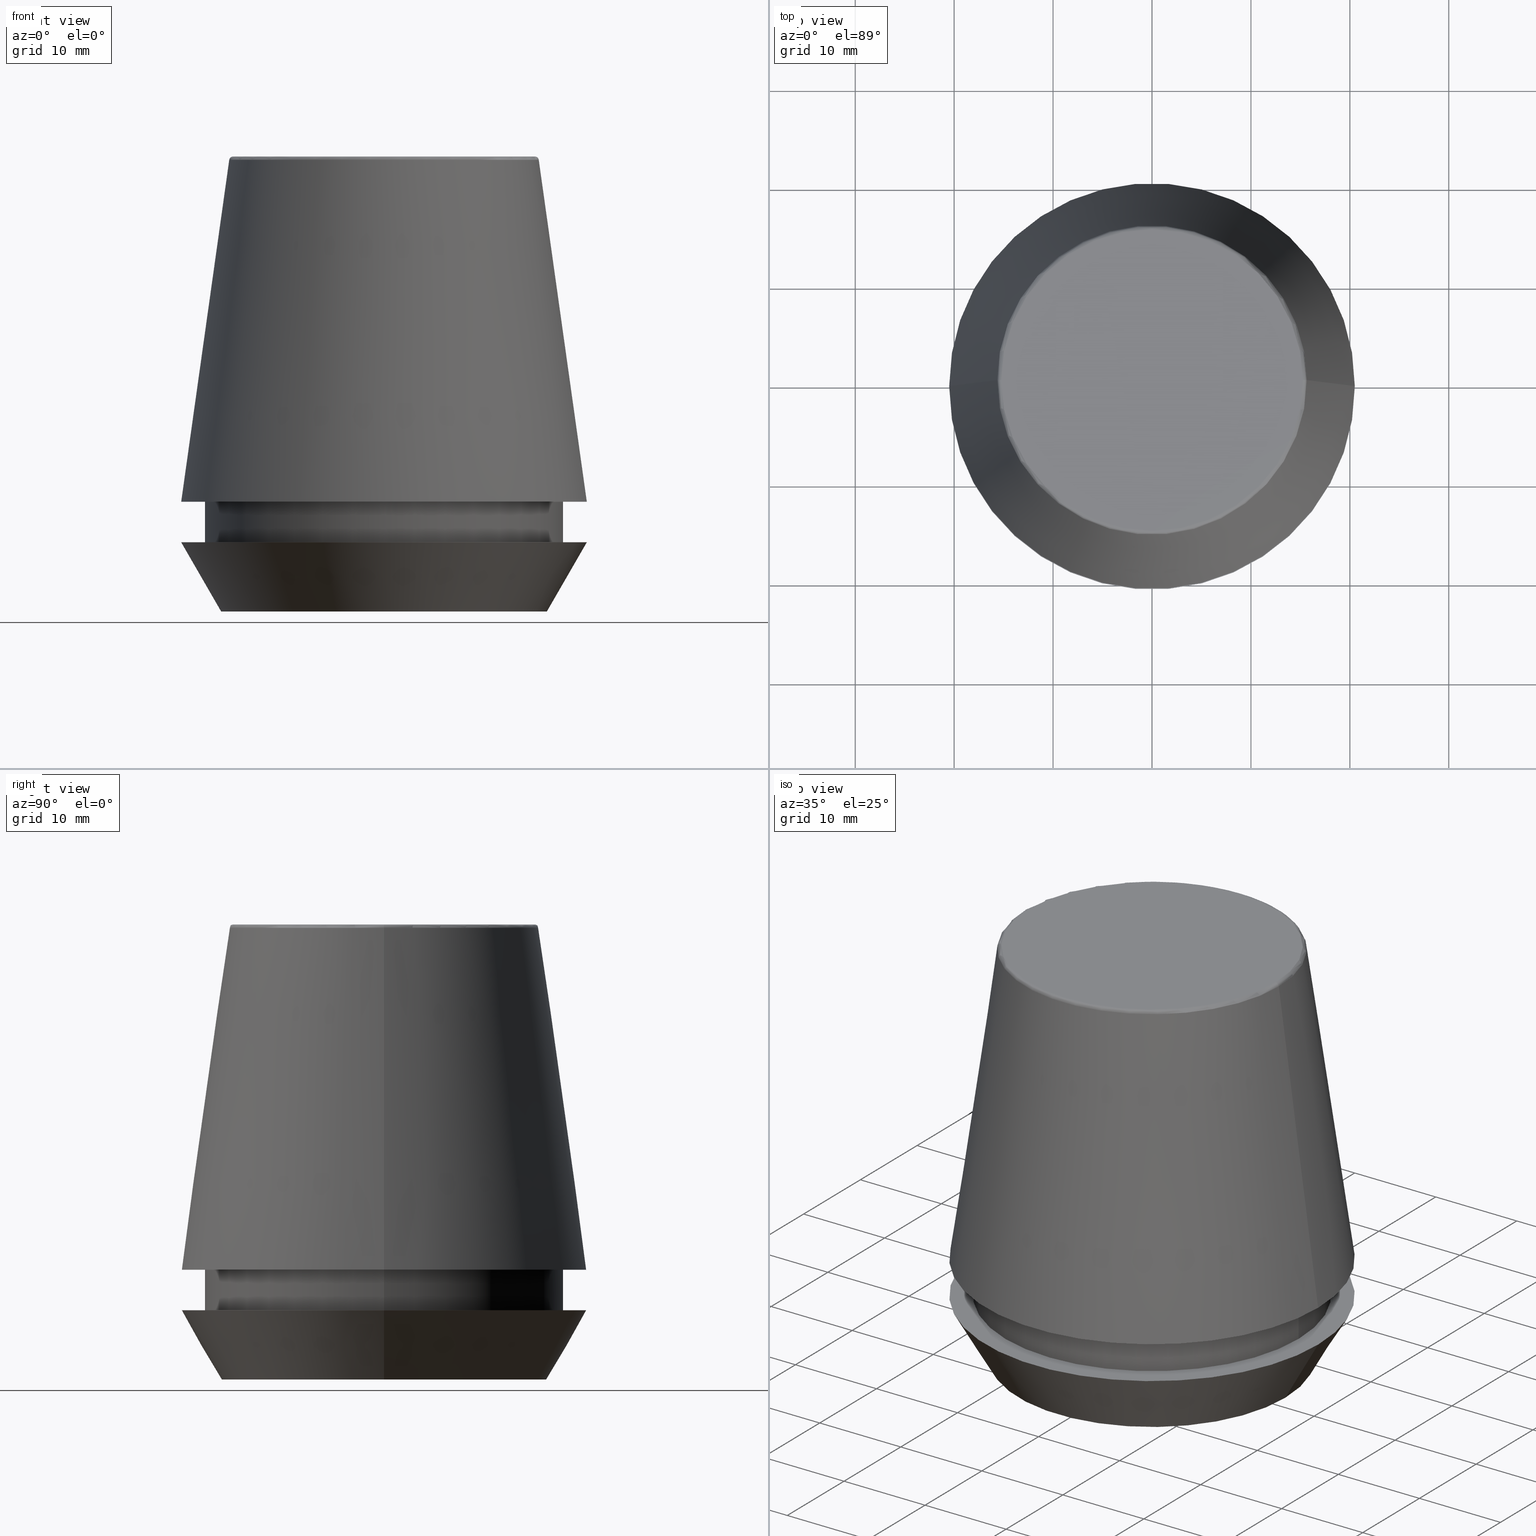
[diagram: canonical four-view strip — front | top / right | iso, engineering-drawing reading convention]
A machine part, canonical four-view strip (front | top / right | iso — engineering-drawing reading convention). The complete STEP part file that produces these views, byte-faithful:
ISO-10303-21;
HEADER;
FILE_DESCRIPTION (( 'STEP AP203' ),
    '1' );
FILE_NAME ('TAP COLLET ER 40G 16.0 X 12.0.STEP',
    '2019-04-10T04:10:29',
    ( '' ),
    ( '' ),
    'SwSTEP 2.0',
    'SolidWorks 2014',
    '' );
FILE_SCHEMA (( 'CONFIG_CONTROL_DESIGN' ));
ENDSEC;

DATA;
#1 = DIRECTION ( 'NONE',  ( 1.000000000000000000, 0.0000000000000000000, 0.0000000000000000000 ) ) ;
#2 = CARTESIAN_POINT ( 'NONE',  ( 18.10000000000000500, 0.0000000000000000000, 46.00000000000000000 ) ) ;
#3 = AXIS2_PLACEMENT_3D ( 'NONE', #52, #127, #259 ) ;
#4 = DIRECTION ( 'NONE',  ( -0.0000000000000000000, -0.0000000000000000000, 1.000000000000000000 ) ) ;
#5 = PERSON_AND_ORGANIZATION ( #62, #172 ) ;
#6 = UNCERTAINTY_MEASURE_WITH_UNIT (LENGTH_MEASURE( 1.000000000000000100E-005 ), #272, 'distance_accuracy_value', 'NONE');
#7 = DIRECTION ( 'NONE',  ( 1.000000000000000000, 0.0000000000000000000, 0.0000000000000000000 ) ) ;
#8 = PERSON_AND_ORGANIZATION_ROLE ( 'design_supplier' ) ;
#9 = EDGE_LOOP ( 'NONE', ( #336, #349, #170, #177 ) ) ;
#10 = ORIENTED_EDGE ( 'NONE', *, *, #217, .T. ) ;
#11 = DIRECTION ( 'NONE',  ( 1.000000000000000000, 0.0000000000000000000, 0.0000000000000000000 ) ) ;
#12 = AXIS2_PLACEMENT_3D ( 'NONE', #106, #326, #158 ) ;
#13 = APPROVAL_DATE_TIME ( #178, #143 ) ;
#14 = DIRECTION ( 'NONE',  ( -0.0000000000000000000, -0.0000000000000000000, 1.000000000000000000 ) ) ;
#15 = VERTEX_POINT ( 'NONE', #368 ) ;
#16 = ORIENTED_EDGE ( 'NONE', *, *, #297, .T. ) ;
#17 = AXIS2_PLACEMENT_3D ( 'NONE', #218, #278, #174 ) ;
#18 = CARTESIAN_POINT ( 'NONE',  ( 18.10000000000000500, 0.0000000000000000000, 11.09999999999999800 ) ) ;
#19 = ORIENTED_EDGE ( 'NONE', *, *, #233, .F. ) ;
#20 = ORIENTED_EDGE ( 'NONE', *, *, #313, .F. ) ;
#21 = CARTESIAN_POINT ( 'NONE',  ( 0.0000000000000000000, 20.50000000000000000, 7.000000000000002700 ) ) ;
#22 = DIRECTION ( 'NONE',  ( 1.000000000000000000, 0.0000000000000000000, 0.0000000000000000000 ) ) ;
#23 = PLANE ( 'NONE',  #251 ) ;
#24 = EDGE_CURVE ( 'NONE', #51, #120, #93, .T. ) ;
#25 = AXIS2_PLACEMENT_3D ( 'NONE', #352, #234, #27 ) ;
#26 = DIRECTION ( 'NONE',  ( 0.0000000000000000000, -1.000000000000000000, 0.0000000000000000000 ) ) ;
#27 = DIRECTION ( 'NONE',  ( 1.000000000000000000, 0.0000000000000000000, 0.0000000000000000000 ) ) ;
#28 = EDGE_LOOP ( 'NONE', ( #56, #91, #226, #16 ) ) ;
#29 = EDGE_CURVE ( 'NONE', #207, #149, #353, .T. ) ;
#30 = PRODUCT_DEFINITION_FORMATION_WITH_SPECIFIED_SOURCE ( 'ANY', '', #113, .NOT_KNOWN. ) ;
#31 = VECTOR ( 'NONE', #138, 1000.000000000000000 ) ;
#32 = PERSON_AND_ORGANIZATION ( #62, #172 ) ;
#33 = DIRECTION ( 'NONE',  ( -0.0000000000000000000, -0.0000000000000000000, 1.000000000000000000 ) ) ;
#34 = CARTESIAN_POINT ( 'NONE',  ( 0.0000000000000000000, 0.0000000000000000000, 0.0000000000000000000 ) ) ;
#35 = MECHANICAL_CONTEXT ( 'NONE', #144, 'mechanical' ) ;
#36 =( GEOMETRIC_REPRESENTATION_CONTEXT ( 3 ) GLOBAL_UNCERTAINTY_ASSIGNED_CONTEXT ( ( #6 ) ) GLOBAL_UNIT_ASSIGNED_CONTEXT ( ( #272, #303, #341 ) ) REPRESENTATION_CONTEXT ( 'NONE', 'WORKASPACE' ) );
#37 = ORIENTED_EDGE ( 'NONE', *, *, #255, .T. ) ;
#38 = SECURITY_CLASSIFICATION_LEVEL ( 'unclassified' ) ;
#39 = EDGE_CURVE ( 'NONE', #286, #323, #205, .T. ) ;
#40 = DIRECTION ( 'NONE',  ( -0.0000000000000000000, -0.0000000000000000000, 1.000000000000000000 ) ) ;
#41 = ADVANCED_FACE ( 'NONE', ( #121 ), #320, .T. ) ;
#42 = DATE_AND_TIME ( #94, #371 ) ;
#43 = COORDINATED_UNIVERSAL_TIME_OFFSET ( 5, 30, .AHEAD. ) ;
#44 = ADVANCED_FACE ( 'NONE', ( #48 ), #308, .T. ) ;
#45 = EDGE_CURVE ( 'NONE', #307, #120, #317, .T. ) ;
#46 = DIRECTION ( 'NONE',  ( 1.000000000000000000, 0.0000000000000000000, 0.0000000000000000000 ) ) ;
#47 = AXIS2_PLACEMENT_3D ( 'NONE', #364, #26, #88 ) ;
#48 = FACE_OUTER_BOUND ( 'NONE', #134, .T. ) ;
#49 = MANIFOLD_SOLID_BREP ( 'Revolve1', #117 ) ;
#50 = CALENDAR_DATE ( 2019, 10, 4 ) ;
#51 = VERTEX_POINT ( 'NONE', #90 ) ;
#52 = CARTESIAN_POINT ( 'NONE',  ( 0.0000000000000000000, 0.0000000000000000000, 11.09999999999999800 ) ) ;
#53 = DIRECTION ( 'NONE',  ( -1.000000000000000000, 0.0000000000000000000, -0.0000000000000000000 ) ) ;
#54 = CARTESIAN_POINT ( 'NONE',  ( 0.0000000000000000000, 0.0000000000000000000, 11.09999999999999800 ) ) ;
#55 = CC_DESIGN_PERSON_AND_ORGANIZATION_ASSIGNMENT ( #64, #8, ( #30 ) ) ;
#56 = ORIENTED_EDGE ( 'NONE', *, *, #224, .F. ) ;
#57 = CARTESIAN_POINT ( 'NONE',  ( 0.0000000000000000000, 0.0000000000000000000, 45.60000000000000100 ) ) ;
#58 = EDGE_CURVE ( 'NONE', #15, #51, #130, .T. ) ;
#59 = CARTESIAN_POINT ( 'NONE',  ( 0.0000000000000000000, 0.0000000000000000000, 45.65566924038402900 ) ) ;
#60 = EDGE_CURVE ( 'NONE', #307, #15, #191, .T. ) ;
#61 = DIRECTION ( 'NONE',  ( -0.0000000000000000000, -0.0000000000000000000, 1.000000000000000000 ) ) ;
#62 = PERSON ( 'UNSPECIFIED', 'UNSPECIFIED', 'UNSPECIFIED', ('UNSPECIFIED'), ('UNSPECIFIED'), ('UNSPECIFIED') ) ;
#63 = EDGE_CURVE ( 'NONE', #15, #307, #310, .T. ) ;
#64 = PERSON_AND_ORGANIZATION ( #62, #172 ) ;
#65 = DIRECTION ( 'NONE',  ( 1.000000000000000000, 0.0000000000000000000, 0.0000000000000000000 ) ) ;
#66 = DIRECTION ( 'NONE',  ( -0.0000000000000000000, -0.0000000000000000000, 1.000000000000000000 ) ) ;
#67 = AXIS2_PLACEMENT_3D ( 'NONE', #80, #102, #282 ) ;
#68 = DIRECTION ( 'NONE',  ( 1.000000000000000000, 0.0000000000000000000, 0.0000000000000000000 ) ) ;
#69 = ORIENTED_EDGE ( 'NONE', *, *, #217, .F. ) ;
#70 = APPLICATION_CONTEXT ( 'configuration controlled 3d designs of mechanical parts and assemblies' ) ;
#71 = ORIENTED_EDGE ( 'NONE', *, *, #132, .F. ) ;
#72 = APPROVAL_STATUS ( 'not_yet_approved' ) ;
#73 = EDGE_CURVE ( 'NONE', #89, #318, #329, .T. ) ;
#74 = ORIENTED_EDGE ( 'NONE', *, *, #29, .F. ) ;
#75 = AXIS2_PLACEMENT_3D ( 'NONE', #361, #294, #237 ) ;
#76 = ADVANCED_FACE ( 'NONE', ( #322 ), #196, .F. ) ;
#77 = ADVANCED_FACE ( 'NONE', ( #315 ), #300, .T. ) ;
#78 = ADVANCED_FACE ( 'NONE', ( #296 ), #316, .T. ) ;
#79 = COORDINATED_UNIVERSAL_TIME_OFFSET ( 5, 30, .AHEAD. ) ;
#80 = CARTESIAN_POINT ( 'NONE',  ( 0.0000000000000000000, 20.50032537154048700, 11.09999999999999800 ) ) ;
#81 = ORIENTED_EDGE ( 'NONE', *, *, #380, .T. ) ;
#82 = CARTESIAN_POINT ( 'NONE',  ( 0.0000000000000000000, 15.24773554530077600, 46.00000000000000000 ) ) ;
#83 = DIRECTION ( 'NONE',  ( -1.000000000000000000, 0.0000000000000000000, 0.0000000000000000000 ) ) ;
#84 = DIRECTION ( 'NONE',  ( 1.000000000000000000, 0.0000000000000000000, 0.0000000000000000000 ) ) ;
#85 = EDGE_LOOP ( 'NONE', ( #179, #81, #225, #220 ) ) ;
#86 = EDGE_LOOP ( 'NONE', ( #69, #372, #145, #362 ) ) ;
#87 = AXIS2_PLACEMENT_3D ( 'NONE', #82, #355, #53 ) ;
#88 = DIRECTION ( 'NONE',  ( 0.0000000000000000000, 0.0000000000000000000, -1.000000000000000000 ) ) ;
#89 = VERTEX_POINT ( 'NONE', #227 ) ;
#90 = CARTESIAN_POINT ( 'NONE',  ( -20.50000000000000000, 2.510525938252074100E-015, 7.000000000000006200 ) ) ;
#91 = ORIENTED_EDGE ( 'NONE', *, *, #380, .F. ) ;
#92 = LOCAL_TIME ( 9, 40, 29.00000000000000000, #79 ) ;
#93 = CIRCLE ( 'NONE', #325, 20.50000000000000000 ) ;
#94 = CALENDAR_DATE ( 2019, 10, 4 ) ;
#95 = APPROVAL_STATUS ( 'not_yet_approved' ) ;
#96 = ADVANCED_FACE ( 'NONE', ( #298 ), #285, .T. ) ;
#97 = PERSON_AND_ORGANIZATION ( #62, #172 ) ;
#98 = ADVANCED_FACE ( 'NONE', ( #311 ), #304, .T. ) ;
#99 = CARTESIAN_POINT ( 'NONE',  ( 15.24773554530077600, 0.0000000000000000000, 46.00000000000000000 ) ) ;
#100 = CARTESIAN_POINT ( 'NONE',  ( 20.50032537154048700, 2.510565784773633700E-015, 11.09999999999999800 ) ) ;
#101 = ORIENTED_EDGE ( 'NONE', *, *, #58, .T. ) ;
#102 = DIRECTION ( 'NONE',  ( 0.0000000000000000000, -0.0000000000000000000, 1.000000000000000000 ) ) ;
#103 = ADVANCED_FACE ( 'NONE', ( #302 ), #279, .T. ) ;
#104 = CARTESIAN_POINT ( 'NONE',  ( 20.50032537154048700, 2.510565784773633700E-015, 11.09999999999999800 ) ) ;
#105 = DIRECTION ( 'NONE',  ( 0.0000000000000000000, 0.0000000000000000000, -1.000000000000000000 ) ) ;
#106 = CARTESIAN_POINT ( 'NONE',  ( 0.0000000000000000000, 0.0000000000000000000, 11.09999999999999800 ) ) ;
#107 = AXIS2_PLACEMENT_3D ( 'NONE', #122, #348, #321 ) ;
#108 = DIRECTION ( 'NONE',  ( -0.0000000000000000000, -0.0000000000000000000, 1.000000000000000000 ) ) ;
#109 = DIRECTION ( 'NONE',  ( 1.000000000000000000, 0.0000000000000000000, 0.0000000000000000000 ) ) ;
#110 = DIRECTION ( 'NONE',  ( 1.000000000000000000, 0.0000000000000000000, 0.0000000000000000000 ) ) ;
#111 = AXIS2_PLACEMENT_3D ( 'NONE', #184, #222, #373 ) ;
#112 = CARTESIAN_POINT ( 'NONE',  ( -16.45854811567268100, 2.015590826847124800E-015, 0.0000000000000000000 ) ) ;
#113 = PRODUCT ( 'TAP COLLET ER 40G 16.0 X 12.0', 'TAP COLLET ER 40G 16.0 X 12.0', '', ( #35 ) ) ;
#114 = CARTESIAN_POINT ( 'NONE',  ( 0.0000000000000000000, 0.0000000000000000000, 6.999999999999999100 ) ) ;
#115 = AXIS2_PLACEMENT_3D ( 'NONE', #161, #356, #84 ) ;
#116 = ADVANCED_FACE ( 'NONE', ( #305 ), #378, .F. ) ;
#117 = CLOSED_SHELL ( 'NONE', ( #78, #103, #77, #44, #76, #41, #155, #96, #119, #128, #98, #116 ) ) ;
#118 = APPROVAL_ROLE ( '' ) ;
#119 = ADVANCED_FACE ( 'NONE', ( #292, #290 ), #261, .F. ) ;
#120 = VERTEX_POINT ( 'NONE', #284 ) ;
#121 = FACE_OUTER_BOUND ( 'NONE', #209, .T. ) ;
#122 = CARTESIAN_POINT ( 'NONE',  ( 0.0000000000000000000, 0.0000000000000000000, 11.09999999999999800 ) ) ;
#123 = EDGE_LOOP ( 'NONE', ( #74, #20 ) ) ;
#124 = APPROVAL_DATE_TIME ( #192, #332 ) ;
#125 = CC_DESIGN_PERSON_AND_ORGANIZATION_ASSIGNMENT ( #5, #365, ( #30 ) ) ;
#126 = CARTESIAN_POINT ( 'NONE',  ( -18.10000000000000100, 2.216610706456709600E-015, 6.999999999999999100 ) ) ;
#127 = DIRECTION ( 'NONE',  ( -0.0000000000000000000, -0.0000000000000000000, 1.000000000000000000 ) ) ;
#128 = ADVANCED_FACE ( 'NONE', ( #244 ), #238, .T. ) ;
#129 = CALENDAR_DATE ( 2019, 10, 4 ) ;
#130 = LINE ( 'NONE', #112, #309 ) ;
#131 = DIRECTION ( 'NONE',  ( 1.000000000000000000, 0.0000000000000000000, 0.0000000000000000000 ) ) ;
#132 = EDGE_CURVE ( 'NONE', #89, #323, #239, .T. ) ;
#133 = DIRECTION ( 'NONE',  ( -0.0000000000000000000, -0.0000000000000000000, 1.000000000000000000 ) ) ;
#134 = EDGE_LOOP ( 'NONE', ( #168, #101, #381, #203 ) ) ;
#135 = CC_DESIGN_DATE_AND_TIME_ASSIGNMENT ( #42, #342, ( #256 ) ) ;
#136 = ORIENTED_EDGE ( 'NONE', *, *, #297, .F. ) ;
#137 = LOCAL_TIME ( 9, 40, 29.00000000000000000, #166 ) ;
#138 = DIRECTION ( 'NONE',  ( 0.4999999999999941700, 0.0000000000000000000, 0.8660254037844420400 ) ) ;
#139 = EDGE_CURVE ( 'NONE', #350, #151, #291, .T. ) ;
#140 = CARTESIAN_POINT ( 'NONE',  ( 0.0000000000000000000, 0.0000000000000000000, 0.0000000000000000000 ) ) ;
#141 = EDGE_LOOP ( 'NONE', ( #37, #236 ) ) ;
#142 = CIRCLE ( 'NONE', #211, 15.64384277279740400 ) ;
#143 = APPROVAL ( #95, 'UNSPECIFIED' ) ;
#144 = APPLICATION_CONTEXT ( 'configuration controlled 3d designs of mechanical parts and assemblies' ) ;
#145 = ORIENTED_EDGE ( 'NONE', *, *, #243, .T. ) ;
#146 = APPROVAL_ROLE ( '' ) ;
#147 = CC_DESIGN_APPROVAL ( #143, ( #30 ) ) ;
#148 = DATE_AND_TIME ( #50, #176 ) ;
#149 = VERTEX_POINT ( 'NONE', #126 ) ;
#150 = EDGE_LOOP ( 'NONE', ( #204, #10, #188, #221 ) ) ;
#151 = VERTEX_POINT ( 'NONE', #18 ) ;
#152 = AXIS2_PLACEMENT_3D ( 'NONE', #54, #105, #83 ) ;
#153 = APPROVAL_PERSON_ORGANIZATION ( #97, #183, #118 ) ;
#154 = APPROVAL_PERSON_ORGANIZATION ( #277, #332, #275 ) ;
#155 = ADVANCED_FACE ( 'NONE', ( #242, #276 ), #23, .F. ) ;
#156 = ORIENTED_EDGE ( 'NONE', *, *, #233, .T. ) ;
#157 = CALENDAR_DATE ( 2019, 10, 4 ) ;
#158 = DIRECTION ( 'NONE',  ( 1.000000000000000000, 0.0000000000000000000, 0.0000000000000000000 ) ) ;
#159 = CARTESIAN_POINT ( 'NONE',  ( -20.50032537154048700, 0.0000000000000000000, 11.09999999999999800 ) ) ;
#160 = CALENDAR_DATE ( 2019, 10, 4 ) ;
#161 = CARTESIAN_POINT ( 'NONE',  ( 0.0000000000000000000, 0.0000000000000000000, 46.00000000000000000 ) ) ;
#162 = APPROVAL_DATE_TIME ( #245, #183 ) ;
#163 = DIRECTION ( 'NONE',  ( 1.000000000000000000, 0.0000000000000000000, 0.0000000000000000000 ) ) ;
#164 = PERSON_AND_ORGANIZATION ( #62, #172 ) ;
#165 = AXIS2_PLACEMENT_3D ( 'NONE', #34, #202, #7 ) ;
#166 = COORDINATED_UNIVERSAL_TIME_OFFSET ( 5, 30, .AHEAD. ) ;
#167 = CARTESIAN_POINT ( 'NONE',  ( -20.50032537154048700, 0.0000000000000000000, 11.09999999999999800 ) ) ;
#168 = ORIENTED_EDGE ( 'NONE', *, *, #60, .T. ) ;
#169 = COORDINATED_UNIVERSAL_TIME_OFFSET ( 5, 30, .AHEAD. ) ;
#170 = ORIENTED_EDGE ( 'NONE', *, *, #339, .T. ) ;
#171 = ORIENTED_EDGE ( 'NONE', *, *, #24, .F. ) ;
#172 = ORGANIZATION ( 'UNSPECIFIED', 'UNSPECIFIED', '' ) ;
#173 = PERSON_AND_ORGANIZATION ( #62, #172 ) ;
#174 = DIRECTION ( 'NONE',  ( 1.000000000000000000, 0.0000000000000000000, 0.0000000000000000000 ) ) ;
#175 = PERSON_AND_ORGANIZATION_ROLE ( 'classification_officer' ) ;
#176 = LOCAL_TIME ( 9, 40, 29.00000000000000000, #169 ) ;
#177 = ORIENTED_EDGE ( 'NONE', *, *, #270, .F. ) ;
#178 = DATE_AND_TIME ( #160, #92 ) ;
#179 = ORIENTED_EDGE ( 'NONE', *, *, #248, .F. ) ;
#180 = APPROVAL_PERSON_ORGANIZATION ( #173, #143, #146 ) ;
#181 = DIRECTION ( 'NONE',  ( 0.1391731009600587200, 1.704378926181473400E-017, -0.9902680687415712500 ) ) ;
#182 = CARTESIAN_POINT ( 'NONE',  ( 18.10000000000000100, 0.0000000000000000000, 6.999999999999999100 ) ) ;
#183 = APPROVAL ( #210, 'UNSPECIFIED' ) ;
#184 = CARTESIAN_POINT ( 'NONE',  ( 0.0000000000000000000, 0.0000000000000000000, 6.999999999999999100 ) ) ;
#185 = COORDINATED_UNIVERSAL_TIME_OFFSET ( 5, 30, .AHEAD. ) ;
#186 = AXIS2_PLACEMENT_3D ( 'NONE', #189, #108, #163 ) ;
#187 = CARTESIAN_POINT ( 'NONE',  ( 0.0000000000000000000, 0.0000000000000000000, 45.60000000000000100 ) ) ;
#188 = ORIENTED_EDGE ( 'NONE', *, *, #258, .F. ) ;
#189 = CARTESIAN_POINT ( 'NONE',  ( 0.0000000000000000000, 0.0000000000000000000, 46.00000000000000000 ) ) ;
#190 = CARTESIAN_POINT ( 'NONE',  ( 0.0000000000000000000, 0.0000000000000000000, 0.0000000000000000000 ) ) ;
#191 = CIRCLE ( 'NONE', #374, 16.45854811567268100 ) ;
#192 = DATE_AND_TIME ( #129, #137 ) ;
#193 = CARTESIAN_POINT ( 'NONE',  ( 16.45854811567268100, 0.0000000000000000000, 0.0000000000000000000 ) ) ;
#194 = ORIENTED_EDGE ( 'NONE', *, *, #63, .F. ) ;
#195 = ORIENTED_EDGE ( 'NONE', *, *, #139, .T. ) ;
#196 = PLANE ( 'NONE',  #271 ) ;
#197 = PRODUCT_DEFINITION_SHAPE ( 'NONE', 'NONE',  #256 ) ;
#198 = ORIENTED_EDGE ( 'NONE', *, *, #73, .T. ) ;
#199 = ORIENTED_EDGE ( 'NONE', *, *, #258, .T. ) ;
#200 = ORIENTED_EDGE ( 'NONE', *, *, #339, .F. ) ;
#201 = SECURITY_CLASSIFICATION ( '', '', #38 ) ;
#202 = DIRECTION ( 'NONE',  ( 0.0000000000000000000, 0.0000000000000000000, 1.000000000000000000 ) ) ;
#203 = ORIENTED_EDGE ( 'NONE', *, *, #45, .F. ) ;
#204 = ORIENTED_EDGE ( 'NONE', *, *, #29, .T. ) ;
#205 = CIRCLE ( 'NONE', #347, 15.24773554530077600 ) ;
#206 = APPLICATION_PROTOCOL_DEFINITION ( 'international standard', 'config_control_design', 1994, #144 ) ;
#207 = VERTEX_POINT ( 'NONE', #182 ) ;
#208 = ORIENTED_EDGE ( 'NONE', *, *, #39, .T. ) ;
#209 = EDGE_LOOP ( 'NONE', ( #387, #351, #363, #171 ) ) ;
#210 = APPROVAL_STATUS ( 'not_yet_approved' ) ;
#211 = AXIS2_PLACEMENT_3D ( 'NONE', #250, #4, #68 ) ;
#212 = VERTEX_POINT ( 'NONE', #159 ) ;
#213 = AXIS2_PLACEMENT_3D ( 'NONE', #187, #133, #22 ) ;
#214 = CARTESIAN_POINT ( 'NONE',  ( -18.10000000000000500, 2.216610706456710000E-015, 46.00000000000000000 ) ) ;
#215 = EDGE_LOOP ( 'NONE', ( #156, #208 ) ) ;
#216 = EDGE_LOOP ( 'NONE', ( #136, #200 ) ) ;
#217 = EDGE_CURVE ( 'NONE', #149, #350, #229, .T. ) ;
#218 = CARTESIAN_POINT ( 'NONE',  ( 0.0000000000000000000, 0.0000000000000000000, 11.09999999999999800 ) ) ;
#219 = AXIS2_PLACEMENT_3D ( 'NONE', #59, #61, #328 ) ;
#220 = ORIENTED_EDGE ( 'NONE', *, *, #39, .F. ) ;
#221 = ORIENTED_EDGE ( 'NONE', *, *, #243, .F. ) ;
#222 = DIRECTION ( 'NONE',  ( -0.0000000000000000000, -0.0000000000000000000, 1.000000000000000000 ) ) ;
#223 = DIRECTION ( 'NONE',  ( 0.0000000000000000000, 0.0000000000000000000, -1.000000000000000000 ) ) ;
#224 = EDGE_CURVE ( 'NONE', #89, #319, #295, .T. ) ;
#225 = ORIENTED_EDGE ( 'NONE', *, *, #132, .T. ) ;
#226 = ORIENTED_EDGE ( 'NONE', *, *, #270, .T. ) ;
#227 = CARTESIAN_POINT ( 'NONE',  ( 15.64384277279740400, 2.213191991290356800E-015, 45.65566924038402900 ) ) ;
#228 = CC_DESIGN_PERSON_AND_ORGANIZATION_ASSIGNMENT ( #32, #306, ( #256 ) ) ;
#229 = LINE ( 'NONE', #214, #260 ) ;
#230 = CARTESIAN_POINT ( 'NONE',  ( 0.0000000000000000000, 0.0000000000000000000, 0.0000000000000000000 ) ) ;
#231 = DIRECTION ( 'NONE',  ( -0.0000000000000000000, -0.0000000000000000000, 1.000000000000000000 ) ) ;
#232 = CIRCLE ( 'NONE', #75, 0.3999999999999975800 ) ;
#233 = EDGE_CURVE ( 'NONE', #323, #286, #257, .T. ) ;
#234 = DIRECTION ( 'NONE',  ( -0.0000000000000000000, -0.0000000000000000000, 1.000000000000000000 ) ) ;
#235 = CC_DESIGN_APPROVAL ( #183, ( #256 ) ) ;
#236 = ORIENTED_EDGE ( 'NONE', *, *, #24, .T. ) ;
#237 = DIRECTION ( 'NONE',  ( -1.000000000000000000, 1.224646799147353900E-016, 0.0000000000000000000 ) ) ;
#238 = CONICAL_SURFACE ( 'NONE', #107, 20.50032537154048700, 0.1396263401595396200 ) ;
#239 = CIRCLE ( 'NONE', #47, 0.3999999999999975800 ) ;
#240 = DIRECTION ( 'NONE',  ( -0.0000000000000000000, -0.0000000000000000000, 1.000000000000000000 ) ) ;
#241 = AXIS2_PLACEMENT_3D ( 'NONE', #57, #330, #131 ) ;
#242 = FACE_BOUND ( 'NONE', #123, .T. ) ;
#243 = EDGE_CURVE ( 'NONE', #207, #151, #254, .T. ) ;
#244 = FACE_OUTER_BOUND ( 'NONE', #28, .T. ) ;
#245 = DATE_AND_TIME ( #157, #283 ) ;
#246 = CIRCLE ( 'NONE', #25, 20.50000000000000000 ) ;
#247 = VECTOR ( 'NONE', #66, 1000.000000000000000 ) ;
#248 = EDGE_CURVE ( 'NONE', #318, #286, #232, .T. ) ;
#249 = CIRCLE ( 'NONE', #3, 20.50032537154048700 ) ;
#250 = CARTESIAN_POINT ( 'NONE',  ( 0.0000000000000000000, 0.0000000000000000000, 45.65566924038402900 ) ) ;
#251 = AXIS2_PLACEMENT_3D ( 'NONE', #21, #223, #312 ) ;
#252 = PERSON_AND_ORGANIZATION_ROLE ( 'design_owner' ) ;
#253 = DATE_TIME_ROLE ( 'classification_date' ) ;
#254 = LINE ( 'NONE', #2, #247 ) ;
#255 = EDGE_CURVE ( 'NONE', #120, #51, #246, .T. ) ;
#256 = PRODUCT_DEFINITION ( 'UNKNOWN', '', #30, #375 ) ;
#257 = CIRCLE ( 'NONE', #265, 15.24773554530077600 ) ;
#258 = EDGE_CURVE ( 'NONE', #151, #350, #269, .T. ) ;
#259 = DIRECTION ( 'NONE',  ( 1.000000000000000000, 0.0000000000000000000, 0.0000000000000000000 ) ) ;
#260 = VECTOR ( 'NONE', #40, 1000.000000000000000 ) ;
#261 = PLANE ( 'NONE',  #67 ) ;
#262 = CC_DESIGN_SECURITY_CLASSIFICATION ( #201, ( #30 ) ) ;
#263 = VECTOR ( 'NONE', #379, 1000.000000000000000 ) ;
#264 = DIRECTION ( 'NONE',  ( 1.000000000000000000, 0.0000000000000000000, 0.0000000000000000000 ) ) ;
#265 = AXIS2_PLACEMENT_3D ( 'NONE', #301, #14, #11 ) ;
#266 = CARTESIAN_POINT ( 'NONE',  ( 0.0000000000000000000, 0.0000000000000000000, 0.0000000000000000000 ) ) ;
#267 = EDGE_LOOP ( 'NONE', ( #199, #195 ) ) ;
#268 = CARTESIAN_POINT ( 'NONE',  ( 0.0000000000000000000, 0.0000000000000000000, 46.00000000000000000 ) ) ;
#269 = CIRCLE ( 'NONE', #357, 18.10000000000000500 ) ;
#270 = EDGE_CURVE ( 'NONE', #318, #212, #274, .T. ) ;
#271 = AXIS2_PLACEMENT_3D ( 'NONE', #230, #382, #264 ) ;
#272 =( LENGTH_UNIT ( ) NAMED_UNIT ( * ) SI_UNIT ( .MILLI., .METRE. ) );
#273 = APPLICATION_PROTOCOL_DEFINITION ( 'international standard', 'config_control_design', 1994, #70 ) ;
#274 = LINE ( 'NONE', #167, #263 ) ;
#275 = APPROVAL_ROLE ( '' ) ;
#276 = FACE_OUTER_BOUND ( 'NONE', #141, .T. ) ;
#277 = PERSON_AND_ORGANIZATION ( #62, #172 ) ;
#278 = DIRECTION ( 'NONE',  ( -0.0000000000000000000, -0.0000000000000000000, 1.000000000000000000 ) ) ;
#279 = CONICAL_SURFACE ( 'NONE', #152, 20.50032537154048700, 0.1396263401595396200 ) ;
#280 = CARTESIAN_POINT ( 'NONE',  ( -18.10000000000000500, 2.216610706456710000E-015, 11.09999999999999800 ) ) ;
#281 = CC_DESIGN_APPROVAL ( #332, ( #201 ) ) ;
#282 = DIRECTION ( 'NONE',  ( 1.000000000000000000, 0.0000000000000000000, 0.0000000000000000000 ) ) ;
#283 = LOCAL_TIME ( 9, 40, 29.00000000000000000, #43 ) ;
#284 = CARTESIAN_POINT ( 'NONE',  ( 20.50000000000000000, 0.0000000000000000000, 7.000000000000006200 ) ) ;
#285 = CYLINDRICAL_SURFACE ( 'NONE', #115, 18.10000000000000500 ) ;
#286 = VERTEX_POINT ( 'NONE', #376 ) ;
#287 = CC_DESIGN_DATE_AND_TIME_ASSIGNMENT ( #148, #253, ( #201 ) ) ;
#288 = DIRECTION ( 'NONE',  ( -0.0000000000000000000, -0.0000000000000000000, 1.000000000000000000 ) ) ;
#289 = VECTOR ( 'NONE', #181, 1000.000000000000000 ) ;
#290 = FACE_BOUND ( 'NONE', #267, .T. ) ;
#291 = CIRCLE ( 'NONE', #12, 18.10000000000000500 ) ;
#292 = FACE_OUTER_BOUND ( 'NONE', #216, .T. ) ;
#293 = CARTESIAN_POINT ( 'NONE',  ( 0.0000000000000000000, 0.0000000000000000000, 11.09999999999999800 ) ) ;
#294 = DIRECTION ( 'NONE',  ( 1.224646799147353200E-016, 1.000000000000000000, 0.0000000000000000000 ) ) ;
#295 = LINE ( 'NONE', #100, #289 ) ;
#296 = FACE_OUTER_BOUND ( 'NONE', #383, .T. ) ;
#297 = EDGE_CURVE ( 'NONE', #212, #319, #249, .T. ) ;
#298 = FACE_OUTER_BOUND ( 'NONE', #86, .T. ) ;
#299 = CC_DESIGN_PERSON_AND_ORGANIZATION_ASSIGNMENT ( #164, #175, ( #201 ) ) ;
#300 = CYLINDRICAL_SURFACE ( 'NONE', #186, 18.10000000000000500 ) ;
#301 = CARTESIAN_POINT ( 'NONE',  ( 0.0000000000000000000, 0.0000000000000000000, 46.00000000000000000 ) ) ;
#302 = FACE_OUTER_BOUND ( 'NONE', #9, .T. ) ;
#303 =( NAMED_UNIT ( * ) PLANE_ANGLE_UNIT ( ) SI_UNIT ( $, .RADIAN. ) );
#304 = TOROIDAL_SURFACE ( 'NONE', #213, 15.24773554530077600, 0.3999999999999991900 ) ;
#305 = FACE_OUTER_BOUND ( 'NONE', #215, .T. ) ;
#306 = PERSON_AND_ORGANIZATION_ROLE ( 'creator' ) ;
#307 = VERTEX_POINT ( 'NONE', #385 ) ;
#308 = CONICAL_SURFACE ( 'NONE', #366, 16.45854811567268100, 0.5235987755982921500 ) ;
#309 = VECTOR ( 'NONE', #359, 1000.000000000000000 ) ;
#310 = CIRCLE ( 'NONE', #384, 16.45854811567268100 ) ;
#311 = FACE_OUTER_BOUND ( 'NONE', #85, .T. ) ;
#312 = DIRECTION ( 'NONE',  ( -1.000000000000000000, 0.0000000000000000000, -0.0000000000000000000 ) ) ;
#313 = EDGE_CURVE ( 'NONE', #149, #207, #346, .T. ) ;
#314 = CC_DESIGN_PERSON_AND_ORGANIZATION_ASSIGNMENT ( #340, #252, ( #113 ) ) ;
#315 = FACE_OUTER_BOUND ( 'NONE', #150, .T. ) ;
#316 = TOROIDAL_SURFACE ( 'NONE', #241, 15.24773554530077600, 0.3999999999999991900 ) ;
#317 = LINE ( 'NONE', #193, #31 ) ;
#318 = VERTEX_POINT ( 'NONE', #354 ) ;
#319 = VERTEX_POINT ( 'NONE', #104 ) ;
#320 = CONICAL_SURFACE ( 'NONE', #377, 16.45854811567268100, 0.5235987755982921500 ) ;
#321 = DIRECTION ( 'NONE',  ( -1.000000000000000000, 0.0000000000000000000, 0.0000000000000000000 ) ) ;
#322 = FACE_OUTER_BOUND ( 'NONE', #338, .T. ) ;
#323 = VERTEX_POINT ( 'NONE', #99 ) ;
#324 = ORIENTED_EDGE ( 'NONE', *, *, #248, .T. ) ;
#325 = AXIS2_PLACEMENT_3D ( 'NONE', #369, #240, #337 ) ;
#326 = DIRECTION ( 'NONE',  ( -0.0000000000000000000, -0.0000000000000000000, 1.000000000000000000 ) ) ;
#327 = ORIENTED_EDGE ( 'NONE', *, *, #60, .F. ) ;
#328 = DIRECTION ( 'NONE',  ( 1.000000000000000000, 0.0000000000000000000, 0.0000000000000000000 ) ) ;
#329 = CIRCLE ( 'NONE', #219, 15.64384277279740400 ) ;
#330 = DIRECTION ( 'NONE',  ( -0.0000000000000000000, -0.0000000000000000000, 1.000000000000000000 ) ) ;
#331 = ADVANCED_BREP_SHAPE_REPRESENTATION ( 'TAP COLLET ER 40G 16.0 X 12.0', ( #49, #165 ), #36 ) ;
#332 = APPROVAL ( #72, 'UNSPECIFIED' ) ;
#333 = DIRECTION ( 'NONE',  ( 1.000000000000000000, 0.0000000000000000000, 0.0000000000000000000 ) ) ;
#334 = DIRECTION ( 'NONE',  ( -0.0000000000000000000, -0.0000000000000000000, 1.000000000000000000 ) ) ;
#335 = DIRECTION ( 'NONE',  ( -0.0000000000000000000, -0.0000000000000000000, 1.000000000000000000 ) ) ;
#336 = ORIENTED_EDGE ( 'NONE', *, *, #73, .F. ) ;
#337 = DIRECTION ( 'NONE',  ( 1.000000000000000000, 0.0000000000000000000, 0.0000000000000000000 ) ) ;
#338 = EDGE_LOOP ( 'NONE', ( #327, #194 ) ) ;
#339 = EDGE_CURVE ( 'NONE', #319, #212, #345, .T. ) ;
#340 = PERSON_AND_ORGANIZATION ( #62, #172 ) ;
#341 =( NAMED_UNIT ( * ) SI_UNIT ( $, .STERADIAN. ) SOLID_ANGLE_UNIT ( ) );
#342 = DATE_TIME_ROLE ( 'creation_date' ) ;
#343 = AXIS2_PLACEMENT_3D ( 'NONE', #114, #344, #1 ) ;
#344 = DIRECTION ( 'NONE',  ( -0.0000000000000000000, -0.0000000000000000000, 1.000000000000000000 ) ) ;
#345 = CIRCLE ( 'NONE', #17, 20.50032537154048700 ) ;
#346 = CIRCLE ( 'NONE', #111, 18.10000000000000100 ) ;
#347 = AXIS2_PLACEMENT_3D ( 'NONE', #268, #335, #386 ) ;
#348 = DIRECTION ( 'NONE',  ( 0.0000000000000000000, 0.0000000000000000000, -1.000000000000000000 ) ) ;
#349 = ORIENTED_EDGE ( 'NONE', *, *, #224, .T. ) ;
#350 = VERTEX_POINT ( 'NONE', #280 ) ;
#351 = ORIENTED_EDGE ( 'NONE', *, *, #63, .T. ) ;
#352 = CARTESIAN_POINT ( 'NONE',  ( 0.0000000000000000000, 0.0000000000000000000, 7.000000000000006200 ) ) ;
#353 = CIRCLE ( 'NONE', #343, 18.10000000000000100 ) ;
#354 = CARTESIAN_POINT ( 'NONE',  ( -15.64384277279740400, 0.0000000000000000000, 45.65566924038402900 ) ) ;
#355 = DIRECTION ( 'NONE',  ( 0.0000000000000000000, 0.0000000000000000000, -1.000000000000000000 ) ) ;
#356 = DIRECTION ( 'NONE',  ( -0.0000000000000000000, -0.0000000000000000000, 1.000000000000000000 ) ) ;
#357 = AXIS2_PLACEMENT_3D ( 'NONE', #293, #358, #333 ) ;
#358 = DIRECTION ( 'NONE',  ( -0.0000000000000000000, -0.0000000000000000000, 1.000000000000000000 ) ) ;
#359 = DIRECTION ( 'NONE',  ( -0.4999999999999941700, 6.123233995736694500E-017, 0.8660254037844420400 ) ) ;
#360 = CARTESIAN_POINT ( 'NONE',  ( 0.0000000000000000000, 0.0000000000000000000, 0.0000000000000000000 ) ) ;
#361 = CARTESIAN_POINT ( 'NONE',  ( -15.24773554530077600, 1.867309052979791600E-015, 45.60000000000000100 ) ) ;
#362 = ORIENTED_EDGE ( 'NONE', *, *, #139, .F. ) ;
#363 = ORIENTED_EDGE ( 'NONE', *, *, #45, .T. ) ;
#364 = CARTESIAN_POINT ( 'NONE',  ( 15.24773554530077600, 0.0000000000000000000, 45.60000000000000100 ) ) ;
#365 = PERSON_AND_ORGANIZATION_ROLE ( 'creator' ) ;
#366 = AXIS2_PLACEMENT_3D ( 'NONE', #360, #334, #46 ) ;
#367 = SHAPE_DEFINITION_REPRESENTATION ( #197, #331 ) ;
#368 = CARTESIAN_POINT ( 'NONE',  ( -16.45854811567268100, 2.263058382549599700E-015, 0.0000000000000000000 ) ) ;
#369 = CARTESIAN_POINT ( 'NONE',  ( 0.0000000000000000000, 0.0000000000000000000, 7.000000000000006200 ) ) ;
#370 = PRODUCT_RELATED_PRODUCT_CATEGORY ( 'detail', '', ( #113 ) ) ;
#371 = LOCAL_TIME ( 9, 40, 29.00000000000000000, #185 ) ;
#372 = ORIENTED_EDGE ( 'NONE', *, *, #313, .T. ) ;
#373 = DIRECTION ( 'NONE',  ( 1.000000000000000000, 0.0000000000000000000, 0.0000000000000000000 ) ) ;
#374 = AXIS2_PLACEMENT_3D ( 'NONE', #190, #231, #110 ) ;
#375 = DESIGN_CONTEXT ( 'detailed design', #70, 'design' ) ;
#376 = CARTESIAN_POINT ( 'NONE',  ( -15.24773554530077600, 1.891563625393435400E-015, 46.00000000000000000 ) ) ;
#377 = AXIS2_PLACEMENT_3D ( 'NONE', #140, #33, #65 ) ;
#378 = PLANE ( 'NONE',  #87 ) ;
#379 = DIRECTION ( 'NONE',  ( -0.1391731009600587200, 0.0000000000000000000, -0.9902680687415712500 ) ) ;
#380 = EDGE_CURVE ( 'NONE', #318, #89, #142, .T. ) ;
#381 = ORIENTED_EDGE ( 'NONE', *, *, #255, .F. ) ;
#382 = DIRECTION ( 'NONE',  ( 0.0000000000000000000, -0.0000000000000000000, 1.000000000000000000 ) ) ;
#383 = EDGE_LOOP ( 'NONE', ( #198, #324, #19, #71 ) ) ;
#384 = AXIS2_PLACEMENT_3D ( 'NONE', #266, #288, #109 ) ;
#385 = CARTESIAN_POINT ( 'NONE',  ( 16.45854811567268100, 0.0000000000000000000, 0.0000000000000000000 ) ) ;
#386 = DIRECTION ( 'NONE',  ( 1.000000000000000000, 0.0000000000000000000, 0.0000000000000000000 ) ) ;
#387 = ORIENTED_EDGE ( 'NONE', *, *, #58, .F. ) ;
ENDSEC;
END-ISO-10303-21;
